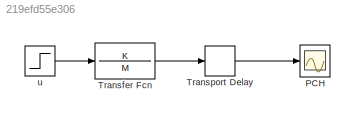
MODEL slx_219efd55e306
KIND model
CONFIG AbsTol = auto
CONFIG EnableMultiTasking = on
CONFIG FixedStep = ptv_sim_step
CONFIG MaxStep = auto
CONFIG MinStep = auto
CONFIG RelTol = 1e-3
CONFIG SampleTimeConstraint = Unconstrained
CONFIG SolverName = ode4
CONFIG StartTime = 0.0
CONFIG StopTime = cas_simulacie
BLOCK [Scope] PCH
  DataLogging = on
  DataLoggingDecimateData = on
  DataLoggingDecimation = 1
  DataLoggingSaveFormat = Array
  DataLoggingVariableName = pch
  Floating = off
  GraphicalSettings = {"GraphicalSettings":{"LegacySettings":true,"Style":{"Style":{"MinimizeControls":"false","PlotType":"Auto"}}}}
  LayoutDimensionsString = [1 1]
  NumInputPorts = 1
  WasSavedAsWebScope = on
BLOCK [TransferFcn] Transfer Fcn
  Denominator = M
  Numerator = K
BLOCK [TransportDelay] Transport Delay
  DelayTime = D
BLOCK [Step] u
  SampleTime = 0
  Time = 0
LINE Transfer Fcn:1 -> Transport Delay:1
LINE Transport Delay:1 -> PCH:1
LINE u:1 -> Transfer Fcn:1
